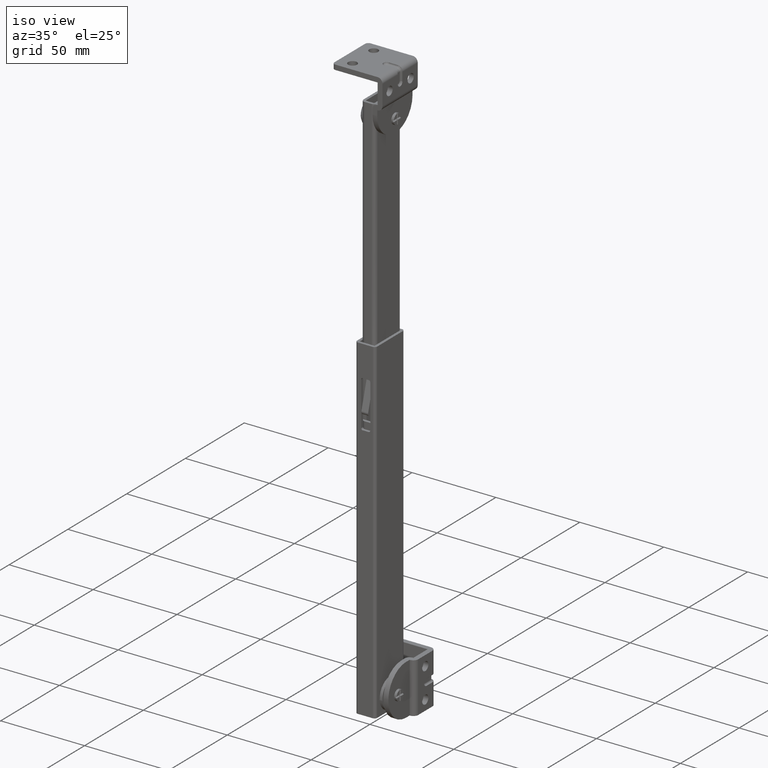
[diagram: clean part render]
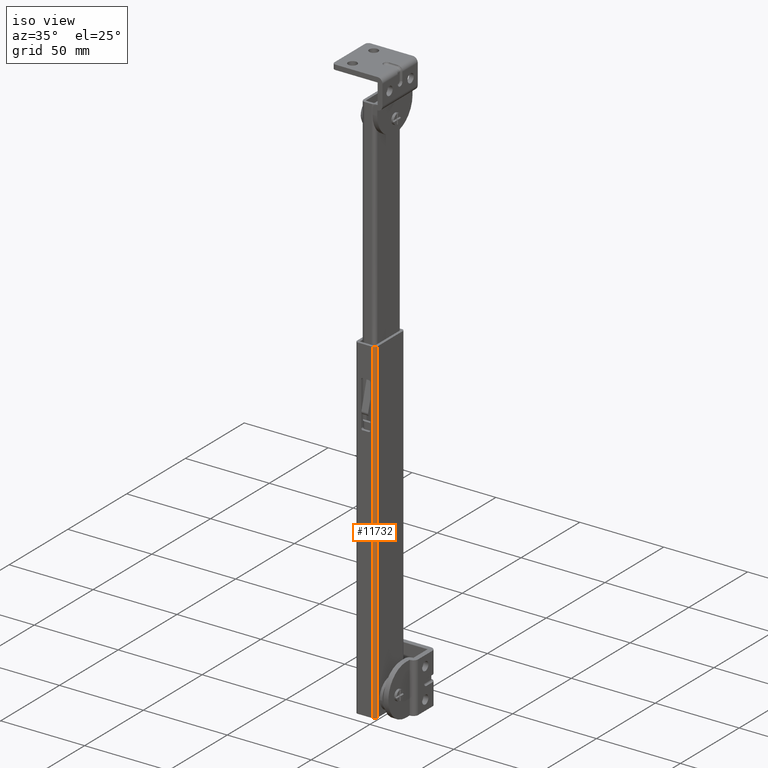
[diagram: same view with one face highlighted and labeled with its STEP entity id]
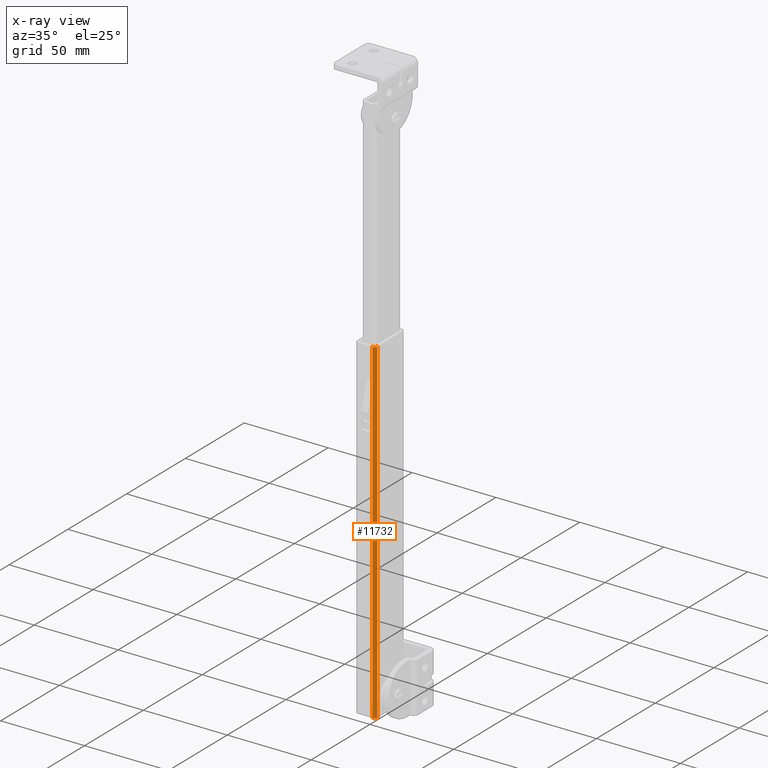
[diagram: x-ray of the same camera — body ghosted, the highlighted face saturated]
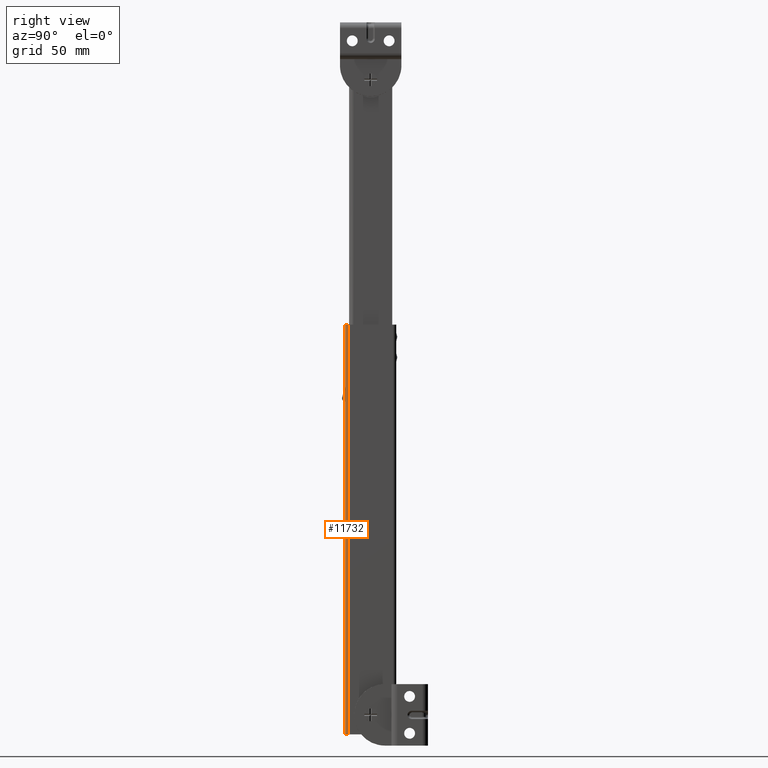
[diagram: same view with one face highlighted and labeled with its STEP entity id]
A machine part, iso view. The second image highlights one B-rep face of the part: STEP entity #11732.
The next image is the same camera in x-ray: the body ghosted, the highlighted face saturated — about 0% of this face is hidden behind the body in this view.
A second angle (right view) of the same face is appended — the face is thin or edge-on in the first view.
In plain terms, the highlighted face is a freeform B-spline surface patch.
Its self-contained STEP definition (entity closure, byte-faithful):
#11368=CARTESIAN_POINT('',(10.399994083775800,-12.500002000000000,190.500000000000000));
#11369=VERTEX_POINT('',#11368);
#11375=CARTESIAN_POINT('',(11.999993999999999,-10.900001860373660,190.500000000000000));
#11376=VERTEX_POINT('',#11375);
#11377=CARTESIAN_POINT('',(10.399994083775800,-12.500002000000000,190.500000000000000));
#11378=CARTESIAN_POINT('',(11.062735799930994,-12.500001965298924,190.500000000000060));
#11379=CARTESIAN_POINT('',(11.531364928883059,-12.031372770913890,190.500000000000000));
#11380=CARTESIAN_POINT('',(11.999994057835119,-11.562743576528854,190.500000000000060));
#11381=CARTESIAN_POINT('',(11.999993999999990,-10.900001860373660,190.500000000000000));
#11389=(BOUNDED_CURVE()B_SPLINE_CURVE(2,(#11377,#11378,#11379,#11380,#11381),.UNSPECIFIED.,.F.,.U.)B_SPLINE_CURVE_WITH_KNOTS((3,2,3),(0.0,0.500000000000000,1.0),.UNSPECIFIED.)CURVE()GEOMETRIC_REPRESENTATION_ITEM()RATIONAL_B_SPLINE_CURVE((1.0,0.923879529171744,1.0,0.923879529171744,1.0))REPRESENTATION_ITEM(''));
#11390=EDGE_CURVE('',#11369,#11376,#11389,.T.);
#11496=CARTESIAN_POINT('',(10.399994083775800,-12.500002000000000,-9.500000000000000));
#11497=VERTEX_POINT('',#11496);
#11562=CARTESIAN_POINT('',(11.999993999999999,-10.900001860373660,-9.500000000000000));
#11563=VERTEX_POINT('',#11562);
#11569=CARTESIAN_POINT('',(10.399994083775800,-12.500002000000000,-9.500000000000000));
#11570=CARTESIAN_POINT('',(11.062735799930994,-12.500001965298924,-9.500000000000002));
#11571=CARTESIAN_POINT('',(11.531364928883059,-12.031372770913890,-9.500000000000000));
#11572=CARTESIAN_POINT('',(11.999994057835119,-11.562743576528854,-9.500000000000002));
#11573=CARTESIAN_POINT('',(11.999993999999990,-10.900001860373660,-9.500000000000000));
#11581=(BOUNDED_CURVE()B_SPLINE_CURVE(2,(#11569,#11570,#11571,#11572,#11573),.UNSPECIFIED.,.F.,.U.)B_SPLINE_CURVE_WITH_KNOTS((3,2,3),(0.0,0.500000000000000,1.0),.UNSPECIFIED.)CURVE()GEOMETRIC_REPRESENTATION_ITEM()RATIONAL_B_SPLINE_CURVE((1.0,0.923879529171744,1.0,0.923879529171744,1.0))REPRESENTATION_ITEM(''));
#11582=EDGE_CURVE('',#11497,#11563,#11581,.T.);
#11704=CARTESIAN_POINT('',(11.998471150876719,-10.830210896519400,-14.500000000000011));
#11705=CARTESIAN_POINT('',(11.998471150876719,-10.830210896519400,195.625000000000000));
#11706=CARTESIAN_POINT('',(12.076689284000446,-12.621698526705110,-14.500000000000009));
#11707=CARTESIAN_POINT('',(12.076689284000446,-12.621698526705110,195.625000000000110));
#11708=CARTESIAN_POINT('',(10.287900966914032,-12.496070655144125,-14.500000000000011));
#11709=CARTESIAN_POINT('',(10.287900966914032,-12.496070655144125,195.625000000000030));
#11717=(BOUNDED_SURFACE()B_SPLINE_SURFACE(1,2,((#11704,#11706,#11708),(#11705,#11707,#11709)),.UNSPECIFIED.,.F.,.F.,.U.)B_SPLINE_SURFACE_WITH_KNOTS((2,2),(3,3),(0.0,210.125000000000000),(0.0,2.866788267697665),.UNSPECIFIED.)GEOMETRIC_REPRESENTATION_ITEM()RATIONAL_B_SPLINE_SURFACE(((1.0,0.664513874721744,0.996233608351123),(1.0,0.664513874721744,0.996233608351123)))REPRESENTATION_ITEM('')SURFACE());
#11718=ORIENTED_EDGE('',*,*,#11390,.F.);
#11719=CARTESIAN_POINT('',(10.399994083775800,-12.500002000000000,-9.500000000000000));
#11720=CARTESIAN_POINT('',(10.399994083775800,-12.500002000000000,190.500000000000000));
#11721=QUASI_UNIFORM_CURVE('',1,(#11719,#11720),.UNSPECIFIED.,.F.,.U.);
#11722=EDGE_CURVE('',#11497,#11369,#11721,.T.);
#11723=ORIENTED_EDGE('',*,*,#11722,.F.);
#11724=ORIENTED_EDGE('',*,*,#11582,.T.);
#11725=CARTESIAN_POINT('',(11.999993999999999,-10.900001860373660,-9.500000000000000));
#11726=CARTESIAN_POINT('',(11.999993999999999,-10.900001860373660,190.500000000000000));
#11727=QUASI_UNIFORM_CURVE('',1,(#11725,#11726),.UNSPECIFIED.,.F.,.U.);
#11728=EDGE_CURVE('',#11563,#11376,#11727,.T.);
#11729=ORIENTED_EDGE('',*,*,#11728,.T.);
#11730=EDGE_LOOP('',(#11718,#11723,#11724,#11729));
#11731=FACE_OUTER_BOUND('',#11730,.T.);
#11732=ADVANCED_FACE('',(#11731),#11717,.T.);